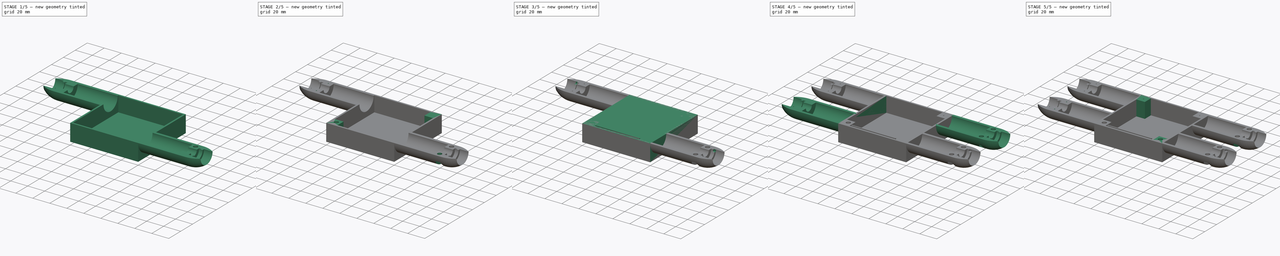
[diagram: build sequence overview — one tinted view per stage of 5, left to right]
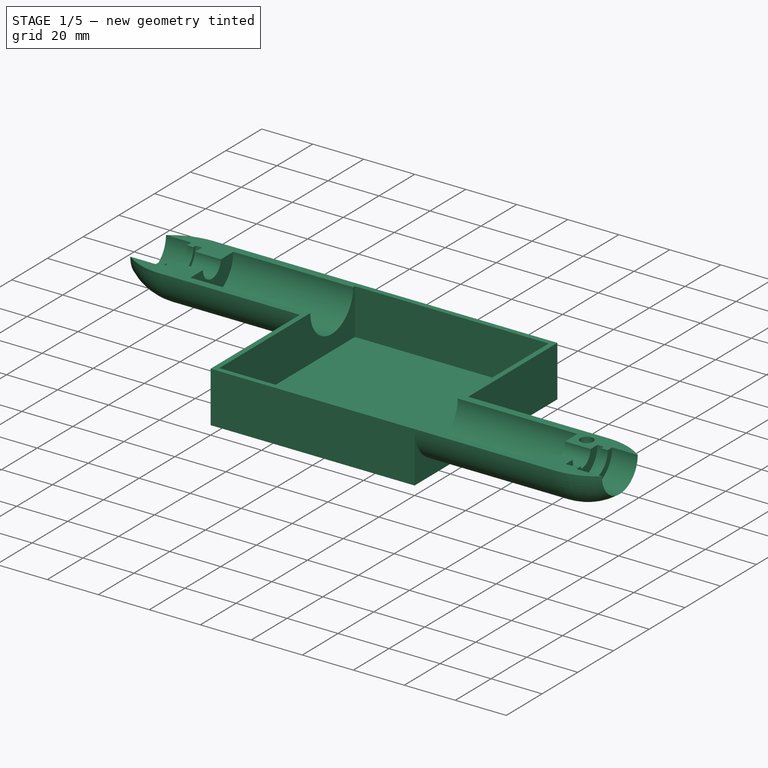
[diagram: stage 1 of 5 — iso view after this stage's code; geometry added in this stage tinted green]
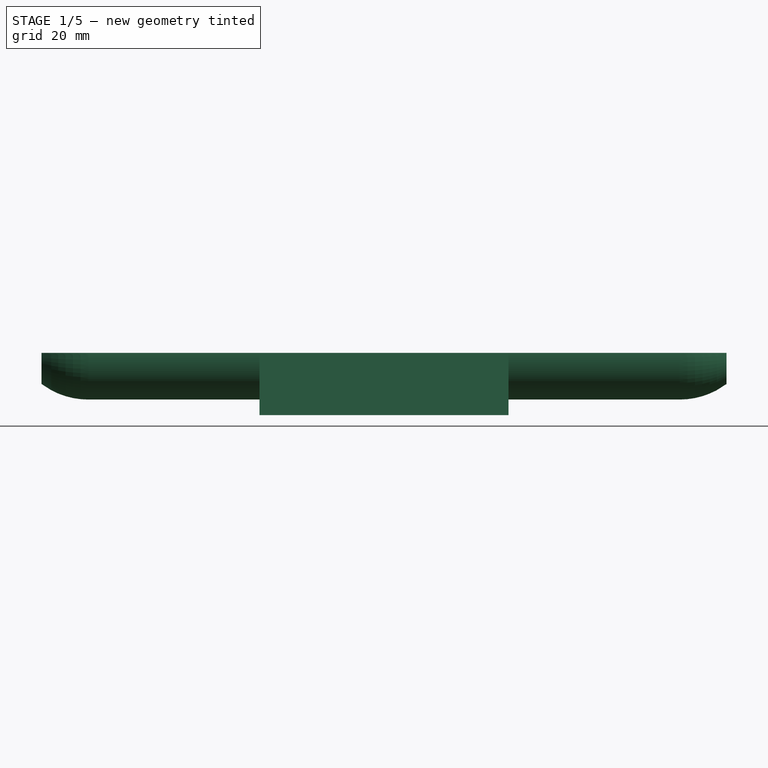
[diagram: stage 1 of 5 — front view after this stage's code; geometry added in this stage tinted green]
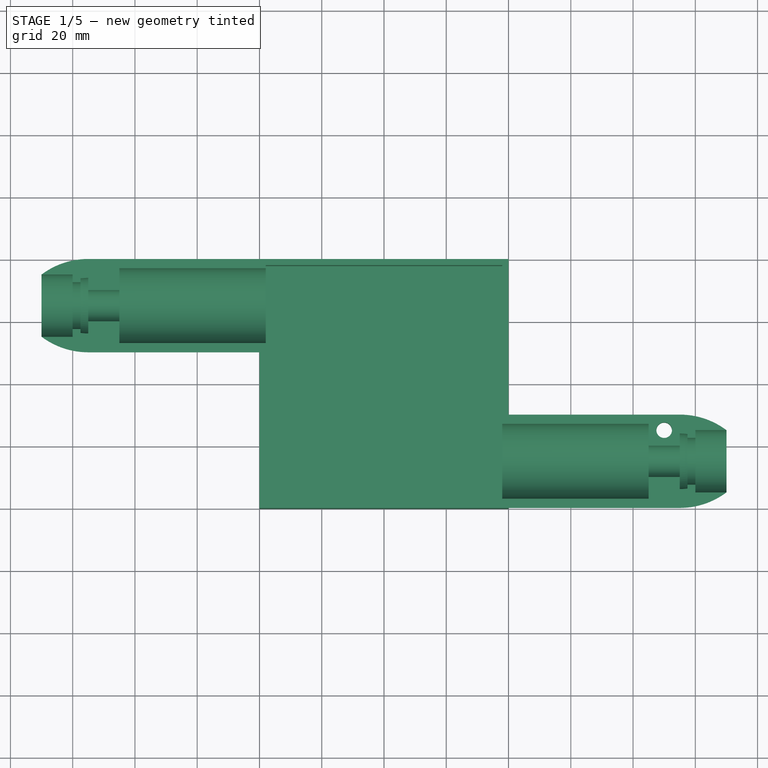
[diagram: stage 1 of 5 — top view after this stage's code; geometry added in this stage tinted green]
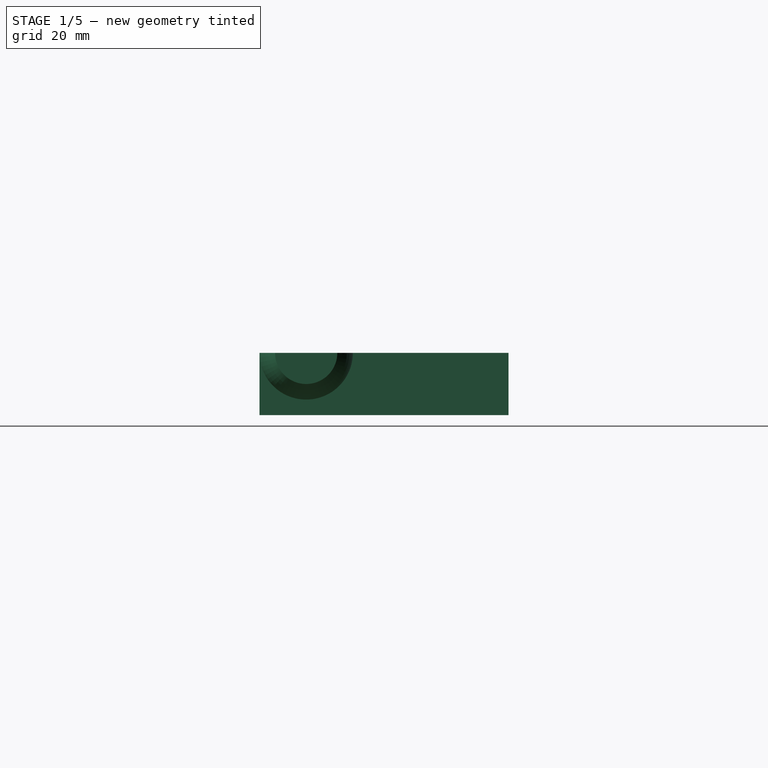
[diagram: stage 1 of 5 — right view after this stage's code; geometry added in this stage tinted green]
FCSTD DOCUMENT  (FreeCAD 0.21R33771 (Git))
Label: mri_cable_trap_box_cover
License: All rights reserved
LicenseURL: http://en.wikipedia.org/wiki/All_rights_reserved
objects: Sketcher::SketchObject×35, PartDesign::Pocket×20, PartDesign::Pad×6, PartDesign::PolarPattern×6, PartDesign::Revolution×2, PartDesign::Body×2, PartDesign::Fillet×1
note: 101 computed .brp shape members not serialized (recipe doc carries the construction recipe); baked Part::Feature solids carry a one-line shape summary decoded from their .brp

FEATURE [Sketcher::SketchObject] Sketch
  FullyConstrained = true
  MapMode = 5
  Support = -> [XY_Plane]
  sketch-geometry (4):
    g0: LineSegment StartX=-40 StartY=40 StartZ=0 EndX=40 EndY=40 EndZ=0
    g1: LineSegment StartX=40 StartY=40 StartZ=0 EndX=40 EndY=-40 EndZ=0
    g2: LineSegment StartX=40 StartY=-40 StartZ=0 EndX=-40 EndY=-40 EndZ=0
    g3: LineSegment StartX=-40 StartY=-40 StartZ=0 EndX=-40 EndY=40 EndZ=0
  constraints (10):
    c: Coincident(g0,g1)
    c: Coincident(g1,g2)
    c: Coincident(g2,g3)
    c: Coincident(g3,g0)
    c: Horizontal(g2)
    c: Vertical(g3)
    c: DistanceX(g0,g0) = 80
    c: DistanceY(g1,g1) = 80
    c: Symmetric(g0,g1,g-1)
    c: Symmetric(g0,g0,g-2)
FEATURE [PartDesign::Pad] Pad
  Direction = (1,1,1)
  Length = 20
  Length2 = 100
  Profile = -> Sketch
  Refine = true
  Type = 0
FEATURE [Sketcher::SketchObject] Sketch001
  AttachmentOffset = pos=(0,0,2) rot=(0,0,1;0rad)
  FullyConstrained = true
  MapMode = 5
  Placement = pos=(0,0,2) rot=(0,0,1;0rad)
  Support = -> [XY_Plane]
  sketch-geometry (4):
    g0: LineSegment StartX=-38 StartY=38 StartZ=0 EndX=38 EndY=38 EndZ=0
    g1: LineSegment StartX=38 StartY=38 StartZ=0 EndX=38 EndY=-38 EndZ=0
    g2: LineSegment StartX=38 StartY=-38 StartZ=0 EndX=-38 EndY=-38 EndZ=0
    g3: LineSegment StartX=-38 StartY=-38 StartZ=0 EndX=-38 EndY=38 EndZ=0
  constraints (10):
    c: Coincident(g0,g1)
    c: Coincident(g1,g2)
    c: Coincident(g2,g3)
    c: Coincident(g3,g0)
    c: Horizontal(g2)
    c: Vertical(g3)
    c: DistanceY(g1,g1) = 76
    c: DistanceX(g0,g0) = 76
    c: Symmetric(g0,g0,g-2)
    c: Symmetric(g0,g1,g-1)
FEATURE [PartDesign::Pocket] Pocket
  BaseFeature = -> Pad
  Direction = (1,1,1)
  Length = 18
  Length2 = 100
  Profile = -> Sketch001
  Refine = true
  Reversed = true
  Type = 0
FEATURE [Sketcher::SketchObject] Sketch004
  AttachmentOffset = pos=(0,0,20) rot=(0,0,1;0rad)
  ExternalGeometry = -> [Pocket]
  FullyConstrained = false
  MapMode = 5
  Placement = pos=(0,0,20) rot=(0,0,1;0rad)
  Support = -> [XY_Plane]
  sketch-geometry (1):
    g0: LineSegment StartX=0 StartY=-25 StartZ=0 EndX=112.473 EndY=-25 EndZ=0
  constraints (3):
    c: PointOnObject(g0,g-2)
    c: Horizontal(g0)
    c: DistanceY(g0,g-1) = 25
FEATURE [Sketcher::SketchObject] Sketch003
  AttachmentOffset = pos=(0,0,20) rot=(0,0,1;0rad)
  ExternalGeometry = -> [Pocket,Sketch004]
  FullyConstrained = true
  MapMode = 5
  Placement = pos=(0,0,20) rot=(0,0,1;0rad)
  Support = -> [XY_Plane]
  sketch-geometry (12):
    g0: LineSegment StartX=40 StartY=-40 StartZ=0 EndX=95 EndY=-40 EndZ=0
    g1: ArcOfCircle CenterX=95 CenterY=-15 CenterZ=0 NormalX=0 NormalY=0 NormalZ=1 AngleXU=0 Radius=25 StartAngle=4.71239 EndAngle=5.35589
    g2: LineSegment StartX=110 StartY=-35 StartZ=0 EndX=100 EndY=-35 EndZ=0
    g3: LineSegment StartX=100 StartY=-35 StartZ=0 EndX=100 EndY=-32.5 EndZ=0
    g4: LineSegment StartX=100 StartY=-32.5 StartZ=0 EndX=97.5 EndY=-32.5 EndZ=0
    g5: LineSegment StartX=97.5 StartY=-32.5 StartZ=0 EndX=97.5 EndY=-33.75 EndZ=0
    g6: ArcOfCircle CenterX=95 CenterY=-15 CenterZ=0 NormalX=0 NormalY=0 NormalZ=1 AngleXU=0 Radius=18.9159 StartAngle=4.71239 EndAngle=4.84494
    g7: LineSegment StartX=95 StartY=-33.9159 StartZ=0 EndX=95 EndY=-30 EndZ=0
    g8: LineSegment StartX=95 StartY=-30 StartZ=0 EndX=85 EndY=-30 EndZ=0
    g9: LineSegment StartX=85 StartY=-30 StartZ=0 EndX=85 EndY=-37 EndZ=0
    g10: LineSegment StartX=85 StartY=-37 StartZ=0 EndX=40 EndY=-37 EndZ=0
    g11: LineSegment StartX=40 StartY=-37 StartZ=0 EndX=40 EndY=-40 EndZ=0
  constraints (36):
    c: Horizontal(g0)
    c: Tangent(g0,g1) = -1.5708
    c: Coincident(g1,g2)
    c: Coincident(g2,g3)
    c: Vertical(g3)
    c: Coincident(g3,g4)
    c: Coincident(g4,g5)
    c: Vertical(g5)
    c: Coincident(g6,g7)
    c: Coincident(g7,g8)
    c: Coincident(g8,g9)
    c: Vertical(g9)
    c: Coincident(g9,g10)
    c: Horizontal(g10)
    c: Coincident(g10,g11)
    c: Coincident(g11,g0)
    c: Vertical(g11)
    c: Horizontal(g8)
    c: Horizontal(g4)
    c: Vertical(g7)
    c: Coincident(g5,g6)
    c: DistanceY(g11,g11) = 3
    c: DistanceX(g-3,g0) = 0
    c: Coincident(g6,g1)
    c: Horizontal(g2)
    c: DistanceX(g8,g8) = 10
    c: DistanceX(g4,g4) = 2.5
    c: DistanceY(g0,g4) = 7.5
    c: DistanceX(g7,g4) = 2.5
    c: DistanceX(g2,g2) = 10
    c: DistanceY(g5,g5) = 1.25
    c: DistanceY(g3,g3) = 2.5
    c: DistanceY(g1,g-4) = 10
    c: DistanceY(g7,g-4) = 5
    c: Vertical(g1,g6)
    c: DistanceX(g0,g0) = 55
FEATURE [PartDesign::Revolution] Revolution
  Angle = 180
  Axis = (1,0,0)
  Base = (0,-25,20)
  BaseFeature = -> Pocket
  Profile = -> Sketch003
  ReferenceAxis = -> Sketch004 [Edge1]
  Refine = true
FEATURE [PartDesign::PolarPattern] PolarPattern
  Angle = 360
  Axis = -> Z_Axis
  BaseFeature = -> Revolution
  Occurrences = 2
  Originals = -> [Revolution]
  Refine = true
FEATURE [Sketcher::SketchObject] Sketch005
  AttachmentOffset = pos=(0,0,40) rot=(0,0,1;0rad)
  ExternalGeometry = -> [Sketch004]
  FullyConstrained = true
  MapMode = 5
  Placement = pos=(40,-8.9e-15,8.9e-15) rot=(0.57735,0.57735,0.57735;2.0944rad)
  Support = -> [YZ_Plane]
  sketch-geometry (1):
    g0: Circle CenterX=-25 CenterY=20 CenterZ=0 NormalX=0 NormalY=0 NormalZ=1 AngleXU=0 Radius=12
  constraints (2):
    c: Coincident(g0,g-3)
    c: Radius(g0) = 12
FEATURE [PartDesign::Pocket] Pocket001
  BaseFeature = -> PolarPattern
  Direction = (1,1,1)
  Length = 2
  Length2 = 100
  Profile = -> Sketch005
  Refine = true
  Type = 0
FEATURE [PartDesign::PolarPattern] PolarPattern001
  Angle = 360
  Axis = -> Z_Axis
  BaseFeature = -> Pocket001
  Occurrences = 2
  Originals = -> [Pocket001]
  Refine = true
FEATURE [Sketcher::SketchObject] Sketch006
  AttachmentOffset = pos=(0,0,20) rot=(0,0,1;0rad)
  ExternalGeometry = -> [PolarPattern001]
  FullyConstrained = true
  MapMode = 5
  Placement = pos=(0,0,20) rot=(0,0,1;0rad)
  Support = -> [XY_Plane]
  sketch-geometry (1):
    g0: Circle CenterX=90 CenterY=-15 CenterZ=0 NormalX=0 NormalY=0 NormalZ=1 AngleXU=0 Radius=2.5
  constraints (3):
    c: DistanceX(g0,g-5) = 5
    c: DistanceY(g-5,g0) = 5
    c: Radius(g0) = 2.5
FEATURE [PartDesign::Pocket] Pocket002
  BaseFeature = -> PolarPattern001
  Direction = (1,1,1)
  Length = 5
  Length2 = 100
  Profile = -> Sketch006
  Refine = true
  Type = 1
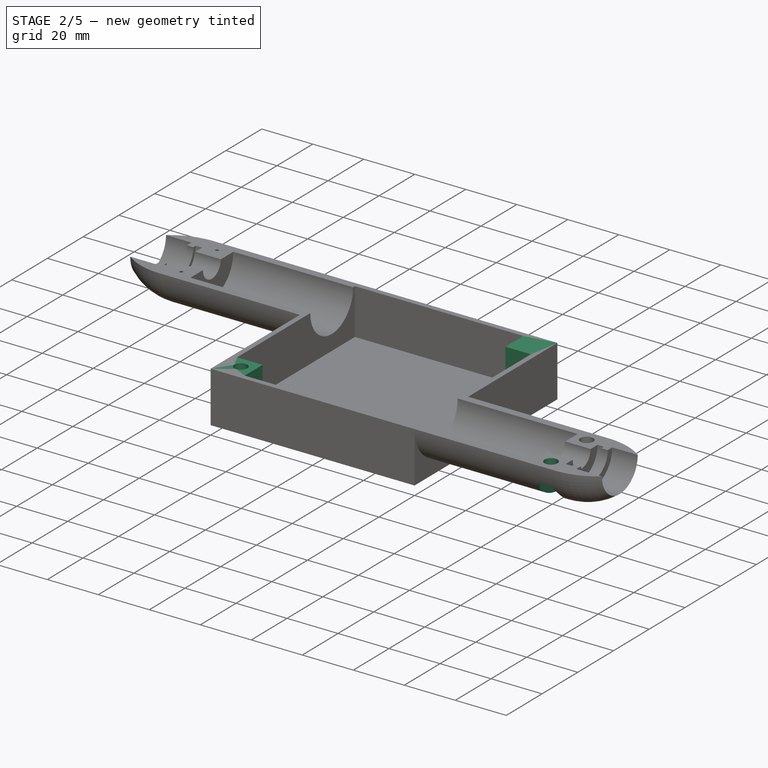
[diagram: stage 2 of 5 — iso view after this stage's code; geometry added in this stage tinted green]
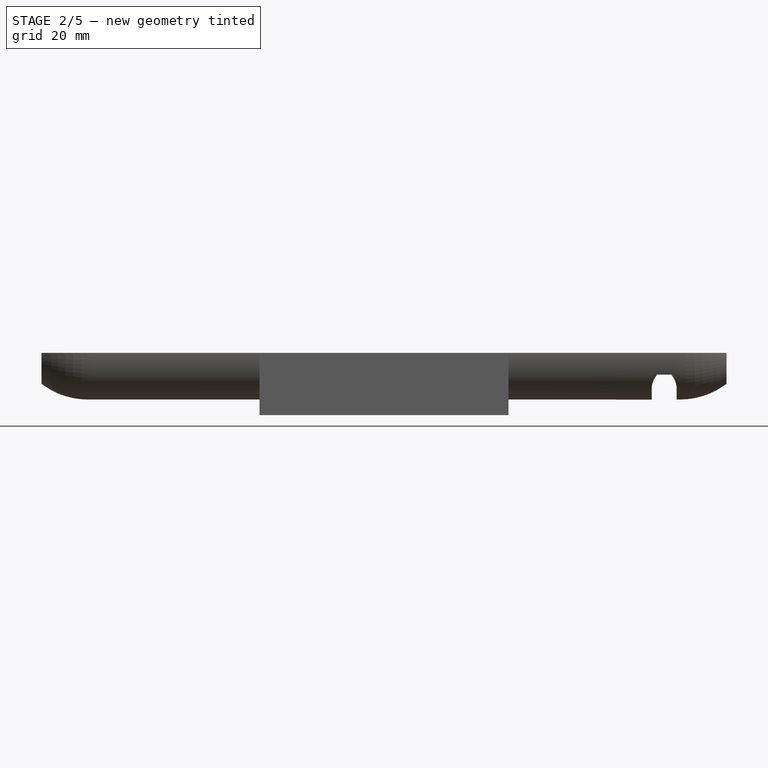
[diagram: stage 2 of 5 — front view after this stage's code; geometry added in this stage tinted green]
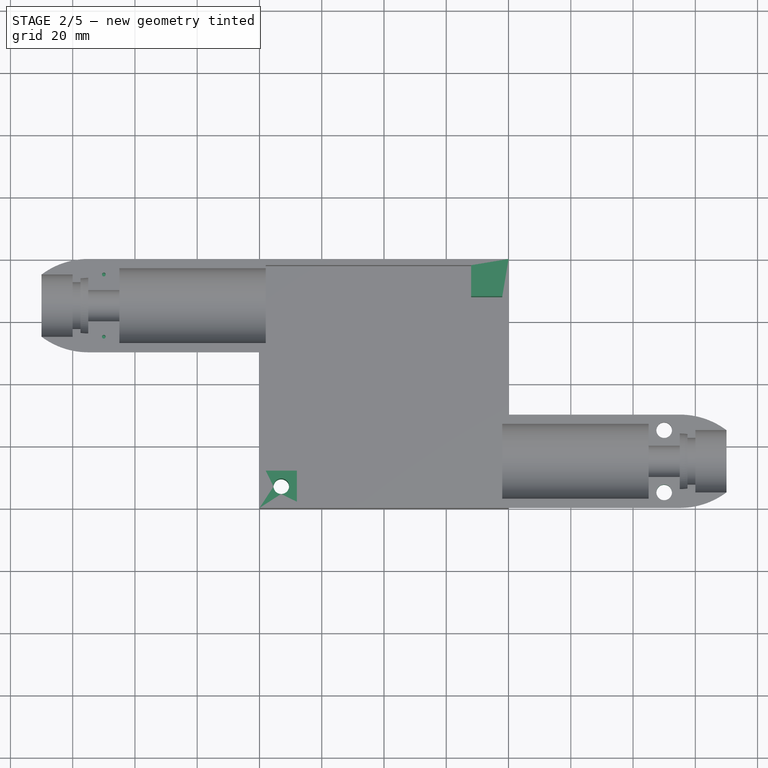
[diagram: stage 2 of 5 — top view after this stage's code; geometry added in this stage tinted green]
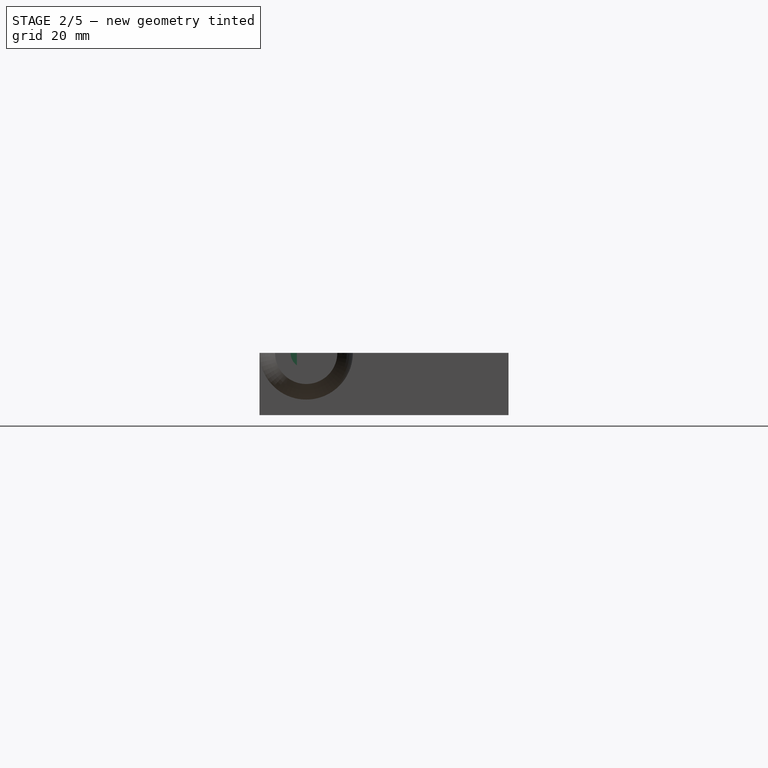
[diagram: stage 2 of 5 — right view after this stage's code; geometry added in this stage tinted green]
FEATURE [Sketcher::SketchObject] Sketch007
  ExternalGeometry = -> [Pocket002,Sketch004]
  FullyConstrained = true
  MapMode = 5
  Support = -> [XY_Plane]
  sketch-geometry (1):
    g0: Circle CenterX=90 CenterY=-35 CenterZ=0 NormalX=0 NormalY=0 NormalZ=1 AngleXU=0 Radius=2.5
  constraints (2):
    c: Symmetric(g0,g-3,g-4)
    c: Radius(g0) = 2.5
FEATURE [PartDesign::Pocket] Pocket003
  BaseFeature = -> Pocket002
  Direction = (1,1,1)
  Length = 5
  Length2 = 100
  Profile = -> Sketch007
  Refine = true
  Reversed = true
  Type = 1
FEATURE [Sketcher::SketchObject] Sketch008
  AttachmentOffset = pos=(0,0,5) rot=(0,0,1;0rad)
  ExternalGeometry = -> [Pocket003]
  FullyConstrained = true
  MapMode = 5
  Placement = pos=(0,0,5) rot=(0,0,1;0rad)
  Support = -> [XY_Plane]
  sketch-geometry (4):
    g0: ArcOfCircle CenterX=90 CenterY=-15 CenterZ=0 NormalX=0 NormalY=0 NormalZ=1 AngleXU=0 Radius=4 StartAngle=0 EndAngle=3.14159
    g1: ArcOfCircle CenterX=90 CenterY=-35 CenterZ=0 NormalX=0 NormalY=0 NormalZ=1 AngleXU=0 Radius=4 StartAngle=3.14159 EndAngle=6.28319
    g2: LineSegment StartX=86 StartY=-15 StartZ=0 EndX=86 EndY=-35 EndZ=0
    g3: LineSegment StartX=94 StartY=-15 StartZ=0 EndX=94 EndY=-35 EndZ=0
  constraints (8):
    c: Tangent(g0,g3) = 1.5708
    c: Tangent(g0,g2) = -1.5708
    c: Tangent(g2,g1) = -1.5708
    c: Tangent(g3,g1) = 1.5708
    c: Vertical(g2)
    c: Coincident(g1,g-4)
    c: Coincident(g0,g-3)
    c: Radius(g0) = 4
FEATURE [PartDesign::Pocket] Pocket004
  BaseFeature = -> Pocket003
  Direction = (1,1,1)
  Length = 8
  Length2 = 100
  Profile = -> Sketch008
  Refine = true
  Reversed = true
  Type = 0
FEATURE [Sketcher::SketchObject] Sketch009
  AttachmentOffset = pos=(0,0,20) rot=(0,0,1;0rad)
  ExternalGeometry = -> [Pocket004]
  FullyConstrained = true
  MapMode = 5
  Placement = pos=(0,0,20) rot=(0,0,1;0rad)
  Support = -> [XY_Plane]
  sketch-geometry (1):
    g0: Circle CenterX=-90 CenterY=35 CenterZ=0 NormalX=0 NormalY=0 NormalZ=1 AngleXU=0 Radius=0.6
  constraints (3):
    c: DistanceX(g0,g-4) = 5
    c: DistanceY(g-4,g0) = 5
    c: Radius(g0) = 0.6
FEATURE [PartDesign::Pocket] Pocket005
  BaseFeature = -> Pocket004
  Direction = (1,1,1)
  Length = 10
  Length2 = 100
  Profile = -> Sketch009
  Refine = true
  Type = 0
FEATURE [Sketcher::SketchObject] Sketch010
  AttachmentOffset = pos=(0,0,20) rot=(0,0,1;0rad)
  ExternalGeometry = -> [Pocket005]
  FullyConstrained = true
  MapMode = 5
  Placement = pos=(0,0,20) rot=(0,0,1;0rad)
  Support = -> [XY_Plane]
  sketch-geometry (1):
    g0: Circle CenterX=-90 CenterY=15 CenterZ=0 NormalX=0 NormalY=0 NormalZ=1 AngleXU=0 Radius=0.6
  constraints (3):
    c: DistanceX(g0,g-5) = 5
    c: DistanceY(g0,g-5) = 5
    c: Radius(g0) = 0.6
FEATURE [PartDesign::Pocket] Pocket006
  BaseFeature = -> Pocket005
  Direction = (1,1,1)
  Length = 10
  Length2 = 100
  Profile = -> Sketch010
  Refine = true
  Type = 0
FEATURE [PartDesign::Body] Body001  label="Top"
  Group = -> [Sketch031,Pad005,Sketch024,Sketch030,Pocket022,Sketch018,Revolution001,PolarPattern007,Sketch020,Pocket013,PolarPattern004,Sketch034,Pocket019,Sketch021,Pocket020,Sketch022,Pocket015,Sketch029,Pocket018,Sketch023,Pocket023,Sketch025,Pad004,PolarPattern005,Sketch028,Pocket017,Sketch033,Pocket021]
  Origin = -> Origin001
  Placement = pos=(-9e-15,0,40) rot=(0,1,0;3.14159rad)
  Tip = -> Pocket021
FEATURE [Sketcher::SketchObject] Sketch040
  ExternalGeometry = -> [Pocket006]
  FullyConstrained = true
  MapMode = 5
  Support = -> [XY_Plane]
  sketch-geometry (4):
    g0: LineSegment StartX=-38 StartY=-28 StartZ=0 EndX=-28 EndY=-28 EndZ=0
    g1: LineSegment StartX=-28 StartY=-28 StartZ=0 EndX=-28 EndY=-38 EndZ=0
    g2: LineSegment StartX=-28 StartY=-38 StartZ=0 EndX=-38 EndY=-38 EndZ=0
    g3: LineSegment StartX=-38 StartY=-38 StartZ=0 EndX=-38 EndY=-28 EndZ=0
  constraints (11):
    c: Coincident(g0,g1)
    c: Coincident(g1,g2)
    c: Coincident(g2,g3)
    c: Coincident(g3,g0)
    c: Horizontal(g0)
    c: Horizontal(g2)
    c: Vertical(g1)
    c: Vertical(g3)
    c: DistanceY(g1,g1) = 10
    c: DistanceX(g0,g0) = 10
    c: Coincident(g2,g-3)
FEATURE [PartDesign::Pad] Pad007
  BaseFeature = -> Pocket006
  Direction = (1,1,1)
  Length = 20
  Length2 = 100
  Profile = -> Sketch040
  Refine = true
  Type = 0
FEATURE [Sketcher::SketchObject] Sketch041
  ExternalGeometry = -> [Pad007]
  FullyConstrained = true
  MapMode = 5
  Support = -> [XY_Plane]
  sketch-geometry (4):
    g0: LineSegment StartX=28 StartY=38 StartZ=0 EndX=38 EndY=38 EndZ=0
    g1: LineSegment StartX=38 StartY=38 StartZ=0 EndX=38 EndY=28 EndZ=0
    g2: LineSegment StartX=38 StartY=28 StartZ=0 EndX=28 EndY=28 EndZ=0
    g3: LineSegment StartX=28 StartY=28 StartZ=0 EndX=28 EndY=38 EndZ=0
  constraints (11):
    c: Coincident(g0,g1)
    c: Coincident(g1,g2)
    c: Coincident(g2,g3)
    c: Coincident(g3,g0)
    c: Horizontal(g0)
    c: Horizontal(g2)
    c: Vertical(g1)
    c: Vertical(g3)
    c: Coincident(g0,g-3)
    c: DistanceX(g2,g2) = 10
    c: DistanceY(g3,g3) = 10
FEATURE [PartDesign::Pad] Pad008
  BaseFeature = -> Pad007
  Direction = (1,1,1)
  Length = 20
  Length2 = 100
  Profile = -> Sketch041
  Refine = true
  Type = 0
FEATURE [Sketcher::SketchObject] Sketch042
  ExternalGeometry = -> [Pad008]
  FullyConstrained = true
  MapMode = 5
  Support = -> [XY_Plane]
  sketch-geometry (1):
    g0: Circle CenterX=-33 CenterY=-33 CenterZ=0 NormalX=0 NormalY=0 NormalZ=1 AngleXU=0 Radius=2.5
  constraints (3):
    c: DistanceX(g0,g-3) = 5
    c: DistanceY(g0,g-3) = 5
    c: Radius(g0) = 2.5
FEATURE [PartDesign::Pocket] Pocket026
  BaseFeature = -> Pad008
  Direction = (1,1,1)
  Length = 5
  Length2 = 100
  Profile = -> Sketch042
  Refine = true
  Reversed = true
  Type = 1
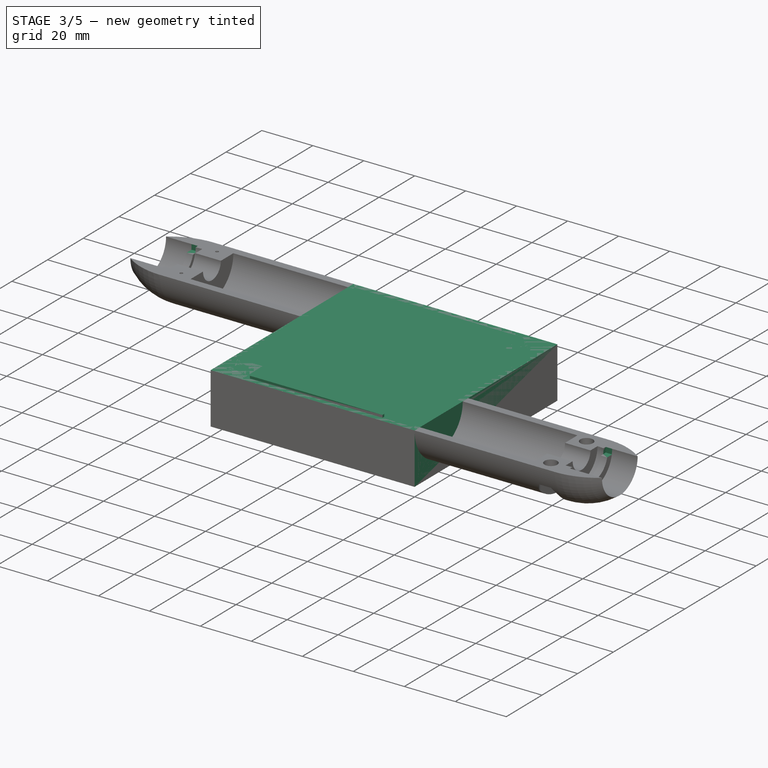
[diagram: stage 3 of 5 — iso view after this stage's code; geometry added in this stage tinted green]
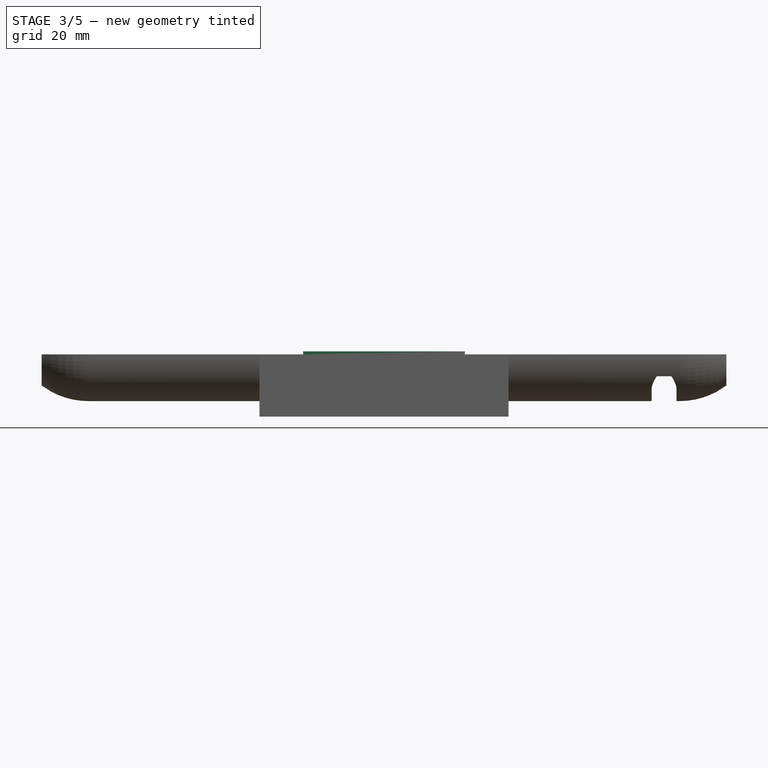
[diagram: stage 3 of 5 — front view after this stage's code; geometry added in this stage tinted green]
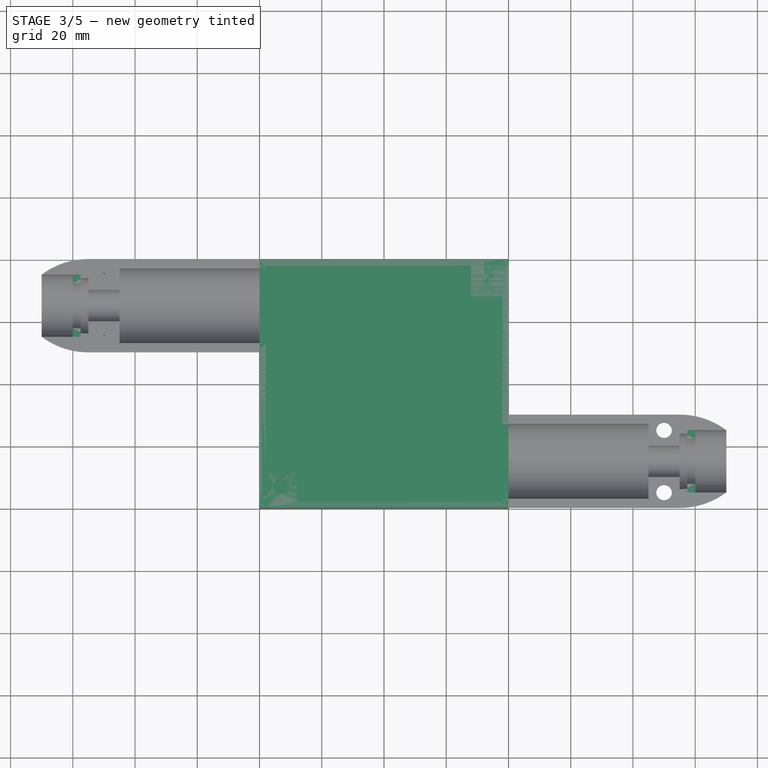
[diagram: stage 3 of 5 — top view after this stage's code; geometry added in this stage tinted green]
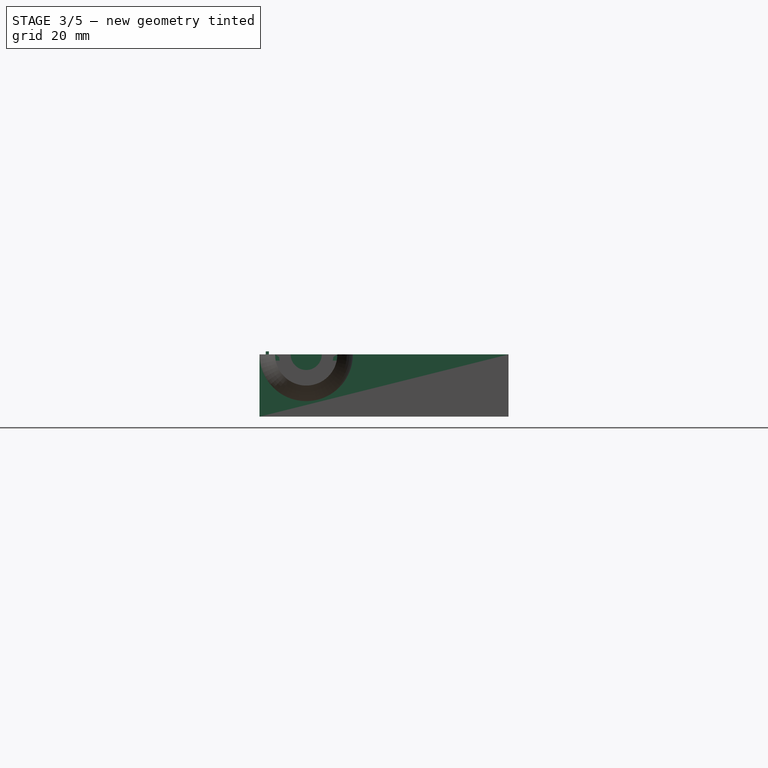
[diagram: stage 3 of 5 — right view after this stage's code; geometry added in this stage tinted green]
FEATURE [Sketcher::SketchObject] Sketch030
  AttachmentOffset = pos=(0,0,2) rot=(0,0,1;0rad)
  FullyConstrained = true
  MapMode = 5
  Placement = pos=(0,0,2) rot=(0,0,1;0rad)
  Support = -> [XY_Plane001]
  sketch-geometry (4):
    g0: LineSegment StartX=-38 StartY=38 StartZ=0 EndX=38 EndY=38 EndZ=0
    g1: LineSegment StartX=38 StartY=38 StartZ=0 EndX=38 EndY=-38 EndZ=0
    g2: LineSegment StartX=38 StartY=-38 StartZ=0 EndX=-38 EndY=-38 EndZ=0
    g3: LineSegment StartX=-38 StartY=-38 StartZ=0 EndX=-38 EndY=38 EndZ=0
  constraints (10):
    c: Coincident(g0,g1)
    c: Coincident(g1,g2)
    c: Coincident(g2,g3)
    c: Coincident(g3,g0)
    c: Horizontal(g2)
    c: Vertical(g3)
    c: DistanceY(g1,g1) = 76
    c: DistanceX(g0,g0) = 76
    c: Symmetric(g0,g0,g-2)
    c: Symmetric(g0,g1,g-1)
FEATURE [Sketcher::SketchObject] Sketch031
  FullyConstrained = true
  MapMode = 5
  Support = -> [XY_Plane001]
  sketch-geometry (4):
    g0: LineSegment StartX=-40 StartY=40 StartZ=0 EndX=40 EndY=40 EndZ=0
    g1: LineSegment StartX=40 StartY=40 StartZ=0 EndX=40 EndY=-40 EndZ=0
    g2: LineSegment StartX=40 StartY=-40 StartZ=0 EndX=-40 EndY=-40 EndZ=0
    g3: LineSegment StartX=-40 StartY=-40 StartZ=0 EndX=-40 EndY=40 EndZ=0
  constraints (10):
    c: Coincident(g0,g1)
    c: Coincident(g1,g2)
    c: Coincident(g2,g3)
    c: Coincident(g3,g0)
    c: Horizontal(g2)
    c: Vertical(g3)
    c: DistanceX(g0,g0) = 80
    c: DistanceY(g1,g1) = 80
    c: Symmetric(g0,g1,g-1)
    c: Symmetric(g0,g0,g-2)
FEATURE [PartDesign::Pad] Pad005
  Direction = (1,1,1)
  Length = 20
  Length2 = 100
  Profile = -> Sketch031
  Refine = true
  Type = 0
FEATURE [Sketcher::SketchObject] Sketch043
  ExternalGeometry = -> [Pocket026]
  FullyConstrained = true
  MapMode = 5
  Support = -> [XY_Plane]
  sketch-geometry (1):
    g0: Circle CenterX=-33 CenterY=-33 CenterZ=0 NormalX=0 NormalY=0 NormalZ=1 AngleXU=0 Radius=4
  constraints (2):
    c: Coincident(g0,g-3)
    c: Radius(g0) = 4
FEATURE [PartDesign::Pocket] Pocket027
  BaseFeature = -> Pocket026
  Direction = (1,1,1)
  Length = 15
  Length2 = 100
  Profile = -> Sketch043
  Refine = true
  Reversed = true
  Type = 0
FEATURE [Sketcher::SketchObject] Sketch044
  AttachmentOffset = pos=(0,0,20) rot=(0,0,1;0rad)
  ExternalGeometry = -> [Pocket027]
  FullyConstrained = true
  MapMode = 5
  Placement = pos=(0,0,20) rot=(0,0,1;0rad)
  Support = -> [XY_Plane]
  sketch-geometry (1):
    g0: Circle CenterX=33 CenterY=33 CenterZ=0 NormalX=0 NormalY=0 NormalZ=1 AngleXU=0 Radius=0.6
  constraints (3):
    c: DistanceX(g-4,g0) = 5
    c: DistanceY(g-4,g0) = 5
    c: Radius(g0) = 0.6
FEATURE [PartDesign::Pocket] Pocket028
  BaseFeature = -> Pocket027
  Direction = (1,1,1)
  Length = 10
  Length2 = 100
  Profile = -> Sketch044
  Refine = true
  Type = 0
FEATURE [Sketcher::SketchObject] Sketch045
  AttachmentOffset = pos=(0,0,10) rot=(0,0,1;0rad)
  ExternalGeometry = -> [Pocket028]
  FullyConstrained = true
  MapMode = 5
  Placement = pos=(0,0,10) rot=(0,0,1;0rad)
  Support = -> [XY_Plane]
  sketch-geometry (4):
    g0: LineSegment StartX=-26 StartY=-37 StartZ=0 EndX=26 EndY=-37 EndZ=0
    g1: LineSegment StartX=26 StartY=-37 StartZ=0 EndX=26 EndY=-38 EndZ=0
    g2: LineSegment StartX=26 StartY=-38 StartZ=0 EndX=-26 EndY=-38 EndZ=0
    g3: LineSegment StartX=-26 StartY=-38 StartZ=0 EndX=-26 EndY=-37 EndZ=0
  constraints (12):
    c: Coincident(g0,g1)
    c: Coincident(g1,g2)
    c: Coincident(g2,g3)
    c: Coincident(g3,g0)
    c: Horizontal(g0)
    c: Horizontal(g2)
    c: Vertical(g1)
    c: Vertical(g3)
    c: DistanceX(g0,g-3) = 2
    c: DistanceX(g-4,g0) = 2
    c: DistanceY(g-4,g2) = 0
    c: DistanceY(g1,g0) = 1
FEATURE [PartDesign::Pad] Pad009
  BaseFeature = -> Pocket028
  Direction = (1,1,1)
  Length = 11
  Length2 = 100
  Profile = -> Sketch045
  Refine = true
  Type = 0
FEATURE [Sketcher::SketchObject] Sketch046
  AttachmentOffset = pos=(0,0,100) rot=(0,0,1;0rad)
  ExternalGeometry = -> [Pad009]
  FullyConstrained = true
  MapMode = 5
  Placement = pos=(100,-2.22e-14,2.22e-14) rot=(0.57735,0.57735,0.57735;2.0944rad)
  Support = -> [YZ_Plane]
  sketch-geometry (4):
    g0: LineSegment StartX=-35 StartY=20 StartZ=0 EndX=-15 EndY=20 EndZ=0
    g1: LineSegment StartX=-15 StartY=20 StartZ=0 EndX=-15 EndY=18 EndZ=0
    g2: LineSegment StartX=-15 StartY=18 StartZ=0 EndX=-35 EndY=18 EndZ=0
    g3: LineSegment StartX=-35 StartY=18 StartZ=0 EndX=-35 EndY=20 EndZ=0
  constraints (10):
    c: Coincident(g0,g1)
    c: Coincident(g1,g2)
    c: Coincident(g2,g3)
    c: Coincident(g3,g0)
    c: Horizontal(g2)
    c: Vertical(g1)
    c: Vertical(g3)
    c: DistanceY(g1,g1) = 2
    c: Coincident(g0,g-3)
    c: Coincident(g-3,g0)
FEATURE [PartDesign::Pocket] Pocket029
  BaseFeature = -> Pad009
  Direction = (1,1,1)
  Length = 2.5
  Length2 = 100
  Profile = -> Sketch046
  Refine = true
  Type = 0
FEATURE [PartDesign::PolarPattern] PolarPattern009
  Angle = 360
  Axis = -> Z_Axis
  BaseFeature = -> Pocket029
  Occurrences = 2
  Originals = -> [Pocket029]
  Refine = true
FEATURE [Sketcher::SketchObject] Sketch047
  FullyConstrained = true
  MapMode = 5
  Support = -> [XY_Plane]
FEATURE [Sketcher::SketchObject] Sketch048
  FullyConstrained = false
  MapMode = 5
  Support = -> [XY_Plane]
  sketch-geometry (1):
    g0: Circle CenterX=-33.1621 CenterY=-32.8164 CenterZ=0 NormalX=0 NormalY=0 NormalZ=1 AngleXU=0 Radius=1.66666
FEATURE [Sketcher::SketchObject] Sketch049
  FullyConstrained = true
  MapMode = 5
  Support = -> [XY_Plane]
FEATURE [Sketcher::SketchObject] Sketch050
  FullyConstrained = true
  MapMode = 5
  Support = -> [XY_Plane]
FEATURE [Sketcher::SketchObject] Sketch051
  FullyConstrained = false
  MapMode = 5
  Support = -> [XY_Plane]
  sketch-geometry (1):
    g0: Circle CenterX=-33.2245 CenterY=-32.9877 CenterZ=0 NormalX=0 NormalY=0 NormalZ=1 AngleXU=0 Radius=4
  constraints (1):
    c: Radius(g0) = 4
FEATURE [PartDesign::Fillet] Fillet
  Base = -> PolarPattern009 [Edge3,Edge5,Edge13,Edge9,Edge2,Edge8,Edge10,Edge1]
  BaseFeature = -> PolarPattern009
  Radius = 2
  Refine = true
  SupportTransform = false
  UseAllEdges = false
FEATURE [PartDesign::Body] Body
  Group = -> [Sketch,Pad,Sketch001,Pocket,Sketch003,Sketch004,Revolution,PolarPattern,Sketch005,Pocket001,PolarPattern001,Sketch006,Pocket002,Sketch007,Pocket003,Sketch008,Pocket004,Sketch009,Pocket005,Sketch010,Pocket006,Sketch040,Pad007,Sketch041,Pad008,Sketch042,Pocket026,Sketch043,Pocket027,Sketch044,Pocket028,Sketch045,Pad009,Sketch046,Pocket029,PolarPattern009,Sketch047,Sketch048,Sketch049,Sketch050,+2 more]
  Origin = -> Origin
  Tip = -> Fillet
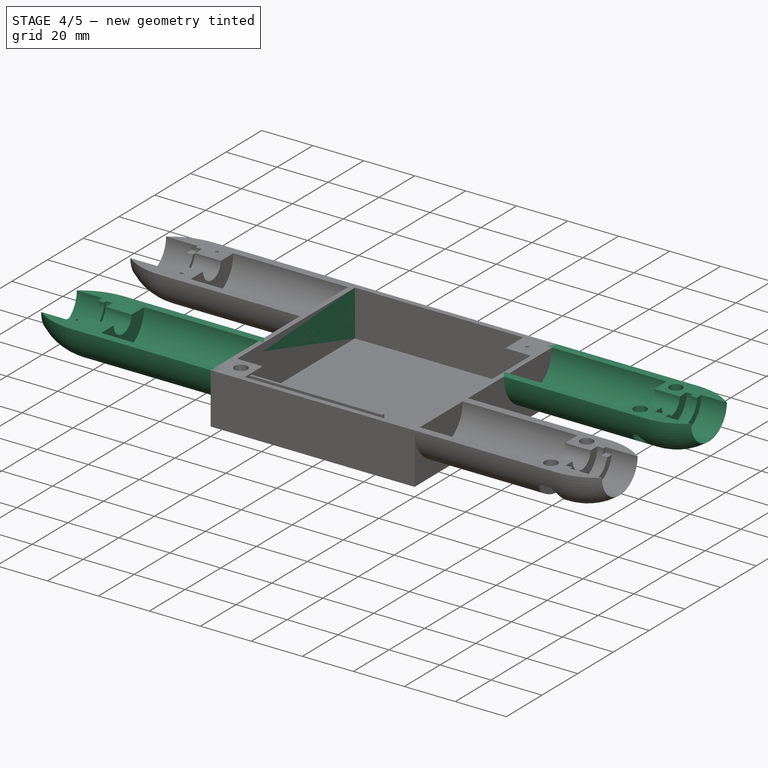
[diagram: stage 4 of 5 — iso view after this stage's code; geometry added in this stage tinted green]
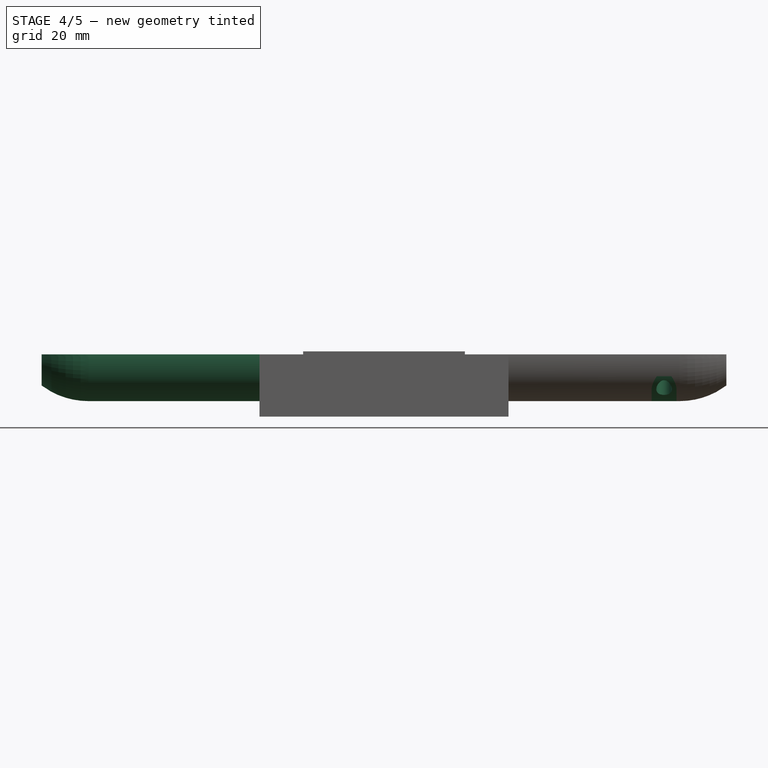
[diagram: stage 4 of 5 — front view after this stage's code; geometry added in this stage tinted green]
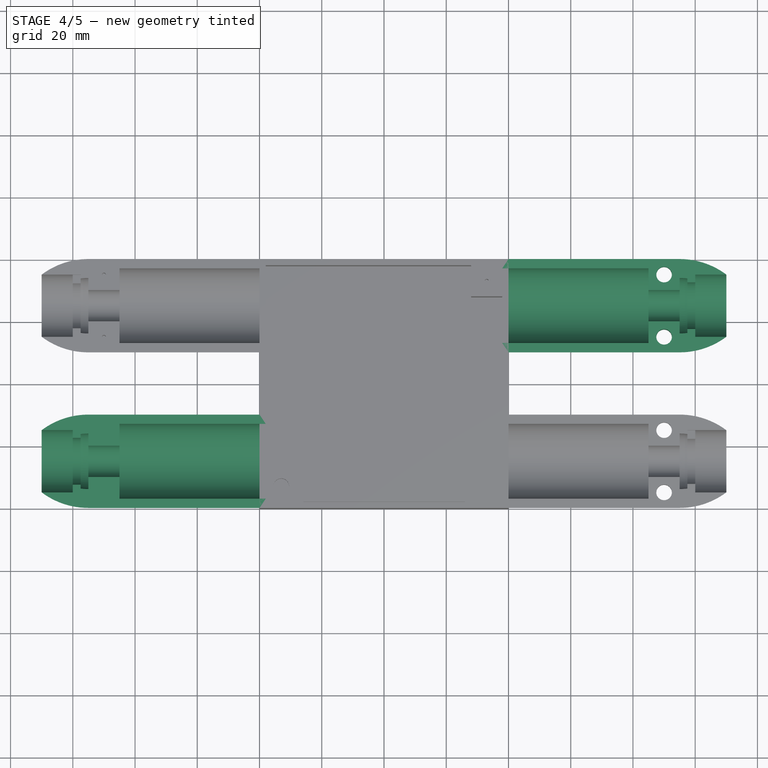
[diagram: stage 4 of 5 — top view after this stage's code; geometry added in this stage tinted green]
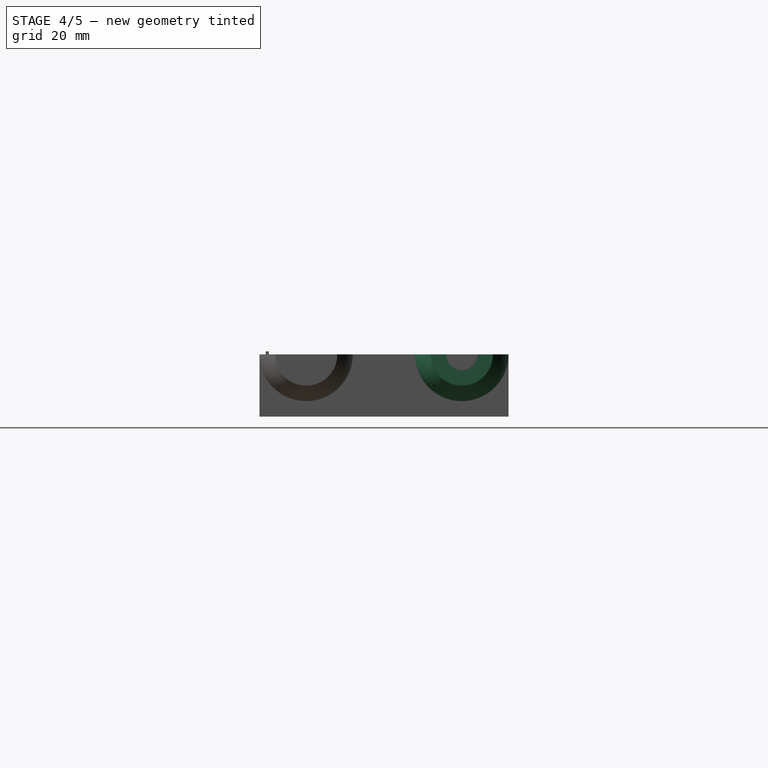
[diagram: stage 4 of 5 — right view after this stage's code; geometry added in this stage tinted green]
FEATURE [PartDesign::Pocket] Pocket022
  BaseFeature = -> Pad005
  Direction = (1,1,1)
  Length = 18
  Length2 = 100
  Profile = -> Sketch030
  Refine = true
  Reversed = true
  Type = 0
FEATURE [Sketcher::SketchObject] Sketch024
  AttachmentOffset = pos=(0,0,20) rot=(0,0,1;0rad)
  ExternalGeometry = -> [Pocket022]
  FullyConstrained = false
  MapMode = 5
  Placement = pos=(0,0,20) rot=(0,0,1;0rad)
  Support = -> [XY_Plane001]
  sketch-geometry (1):
    g0: LineSegment StartX=0 StartY=25 StartZ=0 EndX=112.473 EndY=25 EndZ=0
  constraints (3):
    c: PointOnObject(g0,g-2)
    c: Horizontal(g0)
    c: DistanceY(g0,g-1) = -25
FEATURE [Sketcher::SketchObject] Sketch018
  AttachmentOffset = pos=(0,0,20) rot=(0,0,1;0rad)
  ExternalGeometry = -> [Pocket022,Sketch024]
  FullyConstrained = true
  MapMode = 5
  Placement = pos=(0,0,20) rot=(0,0,1;0rad)
  Support = -> [XY_Plane001]
  sketch-geometry (12):
    g0: LineSegment StartX=40 StartY=10 StartZ=0 EndX=95 EndY=10 EndZ=0
    g1: ArcOfCircle CenterX=95 CenterY=35 CenterZ=0 NormalX=0 NormalY=0 NormalZ=1 AngleXU=0 Radius=25 StartAngle=4.71239 EndAngle=5.35589
    g2: LineSegment StartX=110 StartY=15 StartZ=0 EndX=100 EndY=15 EndZ=0
    g3: LineSegment StartX=100 StartY=15 StartZ=0 EndX=100 EndY=17.5 EndZ=0
    g4: LineSegment StartX=100 StartY=17.5 StartZ=0 EndX=97.5 EndY=17.5 EndZ=0
    g5: LineSegment StartX=97.5 StartY=17.5 StartZ=0 EndX=97.5 EndY=16.25 EndZ=0
    g6: ArcOfCircle CenterX=95 CenterY=35 CenterZ=0 NormalX=0 NormalY=0 NormalZ=1 AngleXU=0 Radius=18.9159 StartAngle=4.71239 EndAngle=4.84494
    g7: LineSegment StartX=95 StartY=16.0841 StartZ=0 EndX=95 EndY=20 EndZ=0
    g8: LineSegment StartX=95 StartY=20 StartZ=0 EndX=85 EndY=20 EndZ=0
    g9: LineSegment StartX=85 StartY=20 StartZ=0 EndX=85 EndY=13 EndZ=0
    g10: LineSegment StartX=85 StartY=13 StartZ=0 EndX=40 EndY=13 EndZ=0
    g11: LineSegment StartX=40 StartY=13 StartZ=0 EndX=40 EndY=10 EndZ=0
  constraints (36):
    c: Horizontal(g0)
    c: Tangent(g0,g1) = -1.5708
    c: Coincident(g1,g2)
    c: Coincident(g2,g3)
    c: Vertical(g3)
    c: Coincident(g3,g4)
    c: Coincident(g4,g5)
    c: Vertical(g5)
    c: Coincident(g6,g7)
    c: Coincident(g7,g8)
    c: Coincident(g8,g9)
    c: Vertical(g9)
    c: Coincident(g9,g10)
    c: Horizontal(g10)
    c: Coincident(g10,g11)
    c: Coincident(g11,g0)
    c: Vertical(g11)
    c: Horizontal(g8)
    c: Horizontal(g4)
    c: Vertical(g7)
    c: Coincident(g5,g6)
    c: DistanceY(g11,g11) = 3
    c: DistanceX(g-3,g0) = 0
    c: Coincident(g6,g1)
    c: Horizontal(g2)
    c: DistanceX(g8,g8) = 10
    c: DistanceX(g4,g4) = 2.5
    c: DistanceY(g0,g4) = 7.5
    c: DistanceX(g7,g4) = 2.5
    c: DistanceX(g2,g2) = 10
    c: DistanceY(g5,g5) = 1.25
    c: DistanceY(g3,g3) = 2.5
    c: DistanceY(g1,g-4) = 10
    c: DistanceY(g7,g-4) = 5
    c: Vertical(g1,g6)
    c: DistanceX(g0,g0) = 55
FEATURE [Sketcher::SketchObject] Sketch020
  AttachmentOffset = pos=(0,0,40) rot=(0,0,1;0rad)
  ExternalGeometry = -> [Sketch024]
  FullyConstrained = true
  MapMode = 5
  Placement = pos=(40,-8.9e-15,8.9e-15) rot=(0.57735,0.57735,0.57735;2.0944rad)
  Support = -> [YZ_Plane001]
  sketch-geometry (1):
    g0: Circle CenterX=25 CenterY=20 CenterZ=0 NormalX=0 NormalY=0 NormalZ=1 AngleXU=0 Radius=12
  constraints (2):
    c: Coincident(g0,g-3)
    c: Radius(g0) = 12
FEATURE [PartDesign::Revolution] Revolution001
  Angle = 180
  Axis = (1,0,0)
  Base = (0,25,20)
  BaseFeature = -> Pocket022
  Profile = -> Sketch018
  ReferenceAxis = -> Sketch024 [Edge1]
  Refine = true
FEATURE [PartDesign::PolarPattern] PolarPattern007
  Angle = 360
  Axis = -> Z_Axis001
  BaseFeature = -> Revolution001
  Occurrences = 2
  Originals = -> [Revolution001]
  Refine = true
FEATURE [PartDesign::Pocket] Pocket013
  BaseFeature = -> PolarPattern007
  Direction = (1,1,1)
  Length = 2
  Length2 = 100
  Profile = -> Sketch020
  Refine = true
  Type = 0
FEATURE [PartDesign::PolarPattern] PolarPattern004
  Angle = 360
  Axis = -> Z_Axis001
  BaseFeature = -> Pocket013
  Occurrences = 2
  Originals = -> [Pocket013]
  Refine = true
FEATURE [Sketcher::SketchObject] Sketch034
  AttachmentOffset = pos=(0,0,20) rot=(0,0,1;0rad)
  ExternalGeometry = -> [PolarPattern004]
  FullyConstrained = true
  MapMode = 5
  Placement = pos=(0,0,20) rot=(0,0,1;0rad)
  Support = -> [XY_Plane001]
  sketch-geometry (1):
    g0: Circle CenterX=90 CenterY=35 CenterZ=0 NormalX=0 NormalY=0 NormalZ=1 AngleXU=0 Radius=2.5
  constraints (3):
    c: DistanceX(g0,g-5) = 5
    c: DistanceY(g-5,g0) = 5
    c: Radius(g0) = 2.5
FEATURE [PartDesign::Pocket] Pocket019
  BaseFeature = -> PolarPattern004
  Direction = (1,1,1)
  Length = 5
  Length2 = 100
  Profile = -> Sketch034
  Refine = true
  Type = 1
FEATURE [Sketcher::SketchObject] Sketch021
  ExternalGeometry = -> [Pocket019,Sketch024]
  FullyConstrained = true
  MapMode = 5
  Support = -> [XY_Plane001]
  sketch-geometry (1):
    g0: Circle CenterX=90 CenterY=15 CenterZ=0 NormalX=0 NormalY=0 NormalZ=1 AngleXU=0 Radius=2.5
  constraints (2):
    c: Symmetric(g0,g-3,g-4)
    c: Radius(g0) = 2.5
FEATURE [PartDesign::Pocket] Pocket020
  BaseFeature = -> Pocket019
  Direction = (1,1,1)
  Length = 5
  Length2 = 100
  Profile = -> Sketch021
  Refine = true
  Reversed = true
  Type = 1
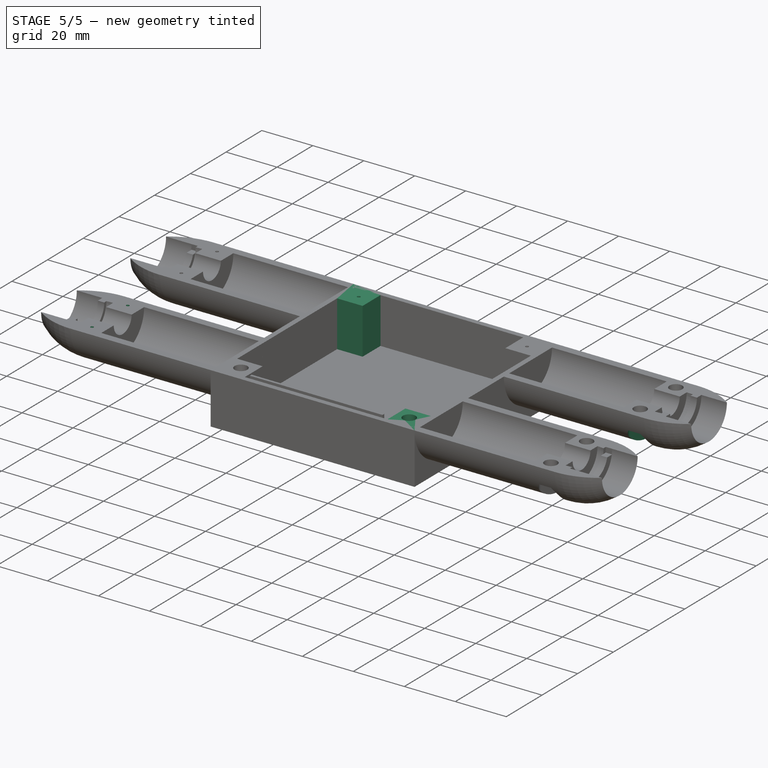
[diagram: stage 5 of 5 — iso view after this stage's code; geometry added in this stage tinted green]
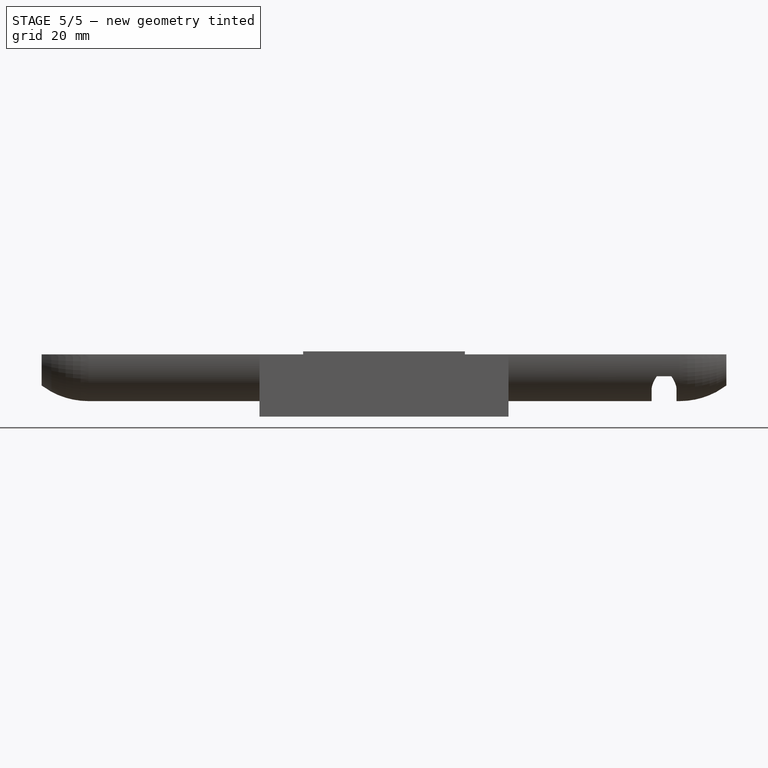
[diagram: stage 5 of 5 — front view after this stage's code; geometry added in this stage tinted green]
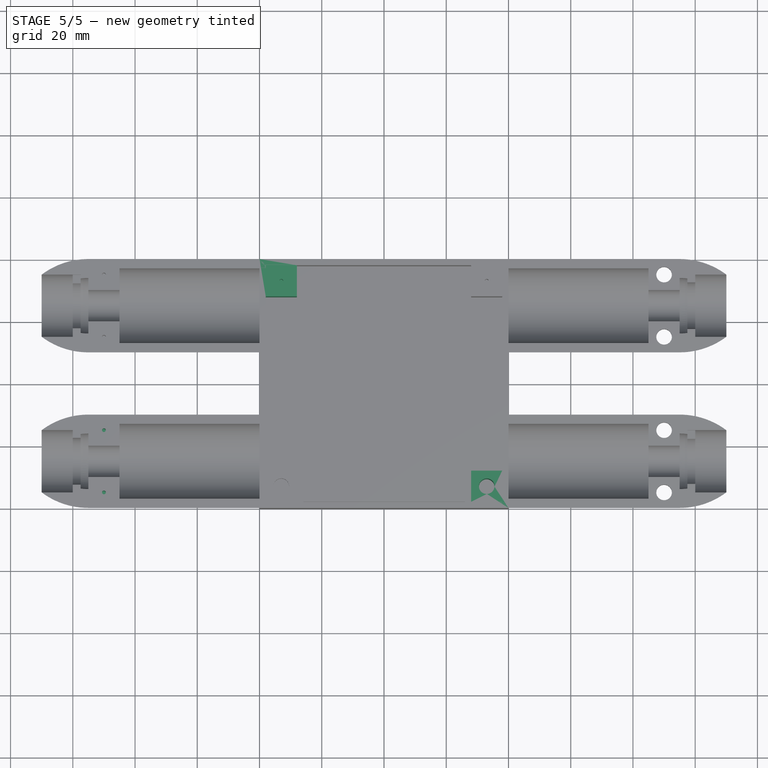
[diagram: stage 5 of 5 — top view after this stage's code; geometry added in this stage tinted green]
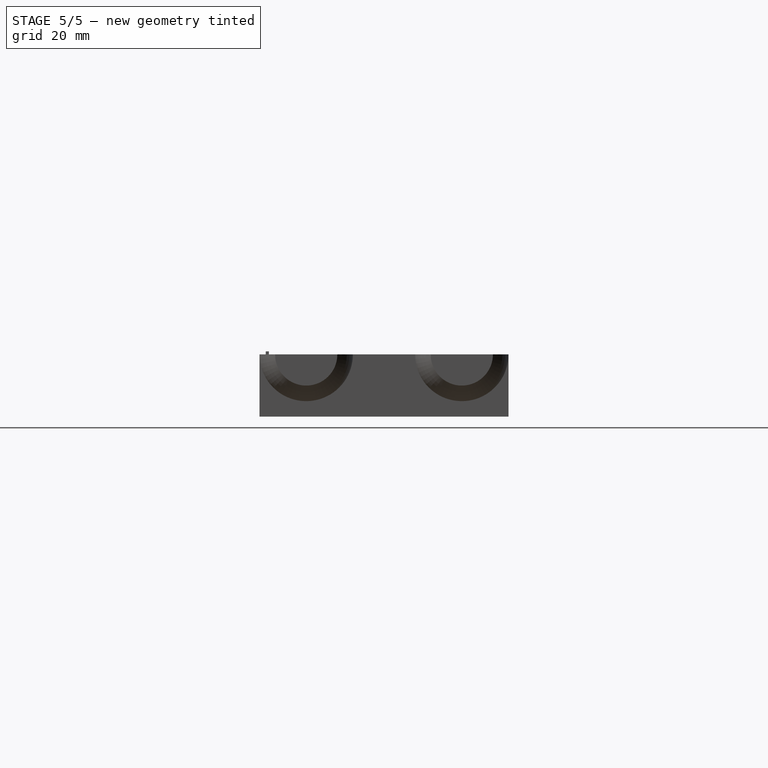
[diagram: stage 5 of 5 — right view after this stage's code; geometry added in this stage tinted green]
FEATURE [Sketcher::SketchObject] Sketch022
  AttachmentOffset = pos=(0,0,5) rot=(0,0,1;0rad)
  ExternalGeometry = -> [Pocket020]
  FullyConstrained = true
  MapMode = 5
  Placement = pos=(0,0,5) rot=(0,0,1;0rad)
  Support = -> [XY_Plane001]
  sketch-geometry (4):
    g0: ArcOfCircle CenterX=90 CenterY=35 CenterZ=0 NormalX=0 NormalY=0 NormalZ=1 AngleXU=0 Radius=4 StartAngle=1e-14 EndAngle=3.14159
    g1: ArcOfCircle CenterX=90 CenterY=15 CenterZ=0 NormalX=0 NormalY=0 NormalZ=1 AngleXU=0 Radius=4 StartAngle=3.14159 EndAngle=6.28319
    g2: LineSegment StartX=86 StartY=35 StartZ=0 EndX=86 EndY=15 EndZ=0
    g3: LineSegment StartX=94 StartY=35 StartZ=0 EndX=94 EndY=15 EndZ=0
  constraints (8):
    c: Tangent(g0,g3) = 1.5708
    c: Tangent(g0,g2) = -1.5708
    c: Tangent(g2,g1) = -1.5708
    c: Tangent(g3,g1) = 1.5708
    c: Vertical(g2)
    c: Coincident(g1,g-4)
    c: Coincident(g0,g-3)
    c: Radius(g0) = 4
FEATURE [PartDesign::Pocket] Pocket015
  BaseFeature = -> Pocket020
  Direction = (1,1,1)
  Length = 8
  Length2 = 100
  Profile = -> Sketch022
  Refine = true
  Reversed = true
  Type = 0
FEATURE [Sketcher::SketchObject] Sketch029
  AttachmentOffset = pos=(0,0,20) rot=(0,0,1;0rad)
  ExternalGeometry = -> [Pocket015]
  FullyConstrained = true
  MapMode = 5
  Placement = pos=(0,0,20) rot=(0,0,1;0rad)
  Support = -> [XY_Plane001]
  sketch-geometry (1):
    g0: Circle CenterX=-90 CenterY=-15 CenterZ=0 NormalX=0 NormalY=0 NormalZ=1 AngleXU=0 Radius=0.6
  constraints (3):
    c: DistanceY(g-4,g0) = 5
    c: Radius(g0) = 0.6
    c: DistanceX(g0,g-3) = 5
FEATURE [PartDesign::Pocket] Pocket018
  BaseFeature = -> Pocket015
  Direction = (1,1,1)
  Length = 10
  Length2 = 100
  Profile = -> Sketch029
  Refine = true
  Type = 0
FEATURE [Sketcher::SketchObject] Sketch023
  AttachmentOffset = pos=(0,0,20) rot=(0,0,1;0rad)
  ExternalGeometry = -> [Pocket018]
  FullyConstrained = true
  MapMode = 5
  Placement = pos=(0,0,20) rot=(0,0,1;0rad)
  Support = -> [XY_Plane001]
  sketch-geometry (1):
    g0: Circle CenterX=-90 CenterY=-35 CenterZ=0 NormalX=0 NormalY=0 NormalZ=1 AngleXU=0 Radius=0.6
  constraints (3):
    c: DistanceX(g0,g-5) = 5
    c: Radius(g0) = 0.6
    c: DistanceY(g0,g-6) = 5
FEATURE [PartDesign::Pocket] Pocket023
  BaseFeature = -> Pocket018
  Direction = (1,1,1)
  Length = 10
  Length2 = 100
  Profile = -> Sketch023
  Refine = true
  Type = 0
FEATURE [Sketcher::SketchObject] Sketch025
  ExternalGeometry = -> [Pocket023]
  FullyConstrained = true
  MapMode = 5
  Support = -> [XY_Plane001]
  sketch-geometry (4):
    g0: LineSegment StartX=28 StartY=-38 StartZ=0 EndX=38 EndY=-38 EndZ=0
    g1: LineSegment StartX=38 StartY=-38 StartZ=0 EndX=38 EndY=-28 EndZ=0
    g2: LineSegment StartX=38 StartY=-28 StartZ=0 EndX=28 EndY=-28 EndZ=0
    g3: LineSegment StartX=28 StartY=-28 StartZ=0 EndX=28 EndY=-38 EndZ=0
  constraints (11):
    c: Coincident(g0,g1)
    c: Coincident(g1,g2)
    c: Coincident(g2,g3)
    c: Coincident(g3,g0)
    c: Horizontal(g0)
    c: Horizontal(g2)
    c: Vertical(g1)
    c: Vertical(g3)
    c: DistanceY(g1,g1) = 10
    c: DistanceX(g2,g2) = 10
    c: Coincident(g0,g-5)
FEATURE [PartDesign::Pad] Pad004
  BaseFeature = -> Pocket023
  Direction = (1,1,1)
  Length = 20
  Length2 = 100
  Profile = -> Sketch025
  Refine = true
  Type = 0
FEATURE [PartDesign::PolarPattern] PolarPattern005
  Angle = 360
  Axis = -> Z_Axis001
  BaseFeature = -> Pad004
  Occurrences = 2
  Originals = -> [Pad004]
  Refine = true
FEATURE [Sketcher::SketchObject] Sketch028
  ExternalGeometry = -> [PolarPattern005]
  FullyConstrained = true
  MapMode = 5
  Support = -> [XY_Plane001]
  sketch-geometry (1):
    g0: Circle CenterX=33 CenterY=-33 CenterZ=0 NormalX=0 NormalY=0 NormalZ=1 AngleXU=0 Radius=2.5
  constraints (3):
    c: DistanceY(g0,g-5) = 5
    c: DistanceX(g0,g-5) = 5
    c: Radius(g0) = 2.5
FEATURE [PartDesign::Pocket] Pocket017
  BaseFeature = -> PolarPattern005
  Direction = (1,1,1)
  Length = 5
  Length2 = 100
  Profile = -> Sketch028
  Refine = true
  Reversed = true
  Type = 1
FEATURE [Sketcher::SketchObject] Sketch033
  AttachmentOffset = pos=(0,0,20) rot=(0,0,1;0rad)
  ExternalGeometry = -> [Pocket017]
  FullyConstrained = true
  MapMode = 5
  Placement = pos=(0,0,20) rot=(0,0,1;0rad)
  Support = -> [XY_Plane001]
  sketch-geometry (1):
    g0: Circle CenterX=-33 CenterY=33 CenterZ=0 NormalX=0 NormalY=0 NormalZ=1 AngleXU=0 Radius=0.6
  constraints (3):
    c: Radius(g0) = 0.6
    c: DistanceX(g0,g-4) = 5
    c: DistanceY(g-4,g0) = 5
FEATURE [PartDesign::Pocket] Pocket021
  BaseFeature = -> Pocket017
  Direction = (1,1,1)
  Length = 10
  Length2 = 100
  Profile = -> Sketch033
  Refine = true
  Type = 0
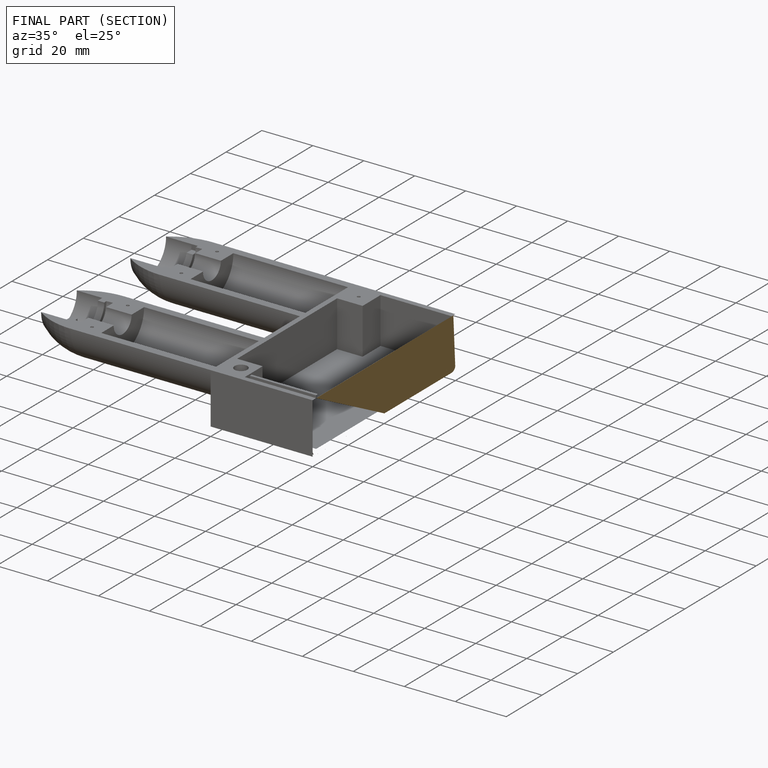
[diagram: finished part — half-section view (interior)]
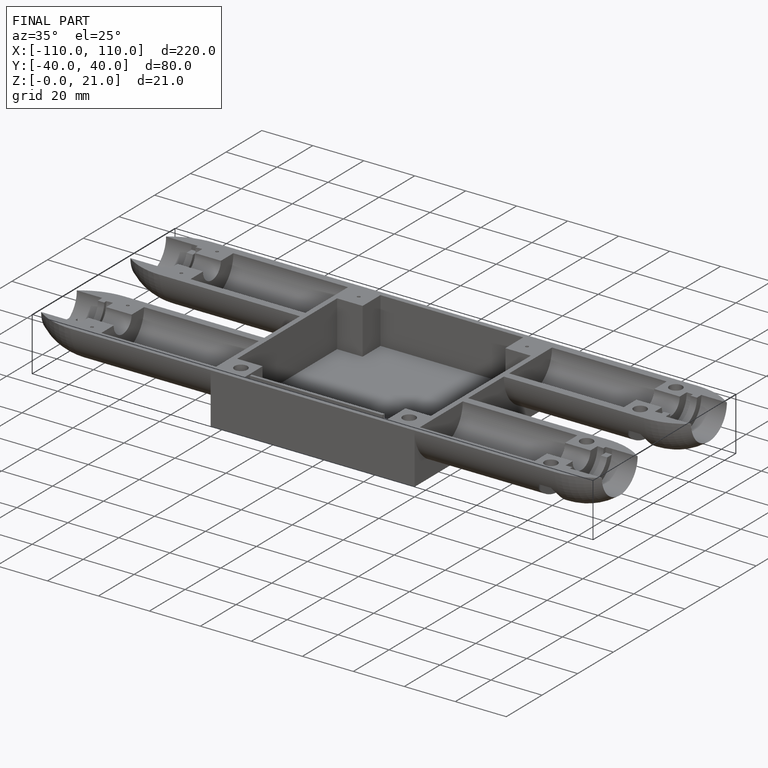
[diagram: finished part — iso view with bounding-box wireframe]
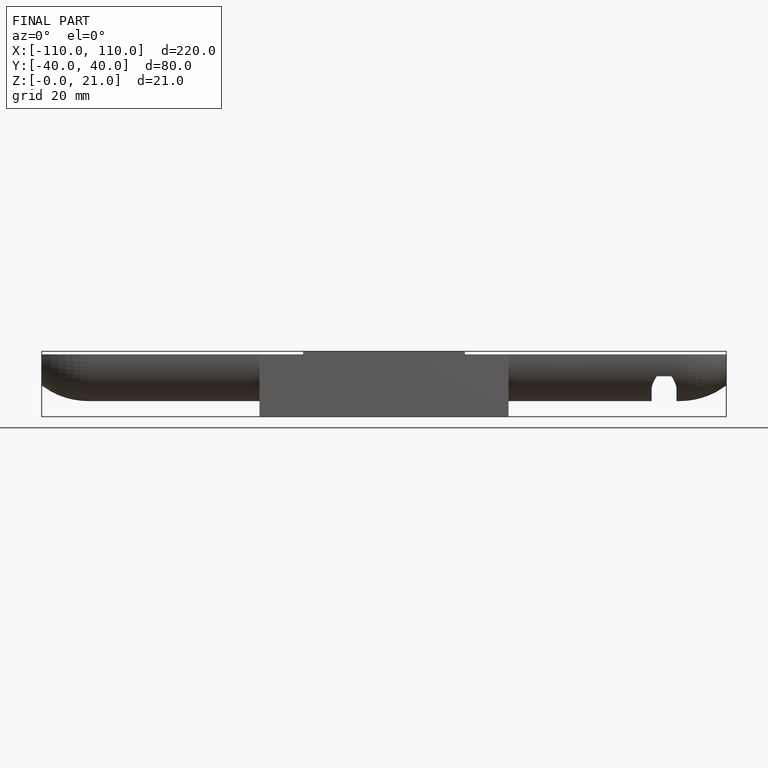
[diagram: finished part — front view with bounding-box wireframe]
